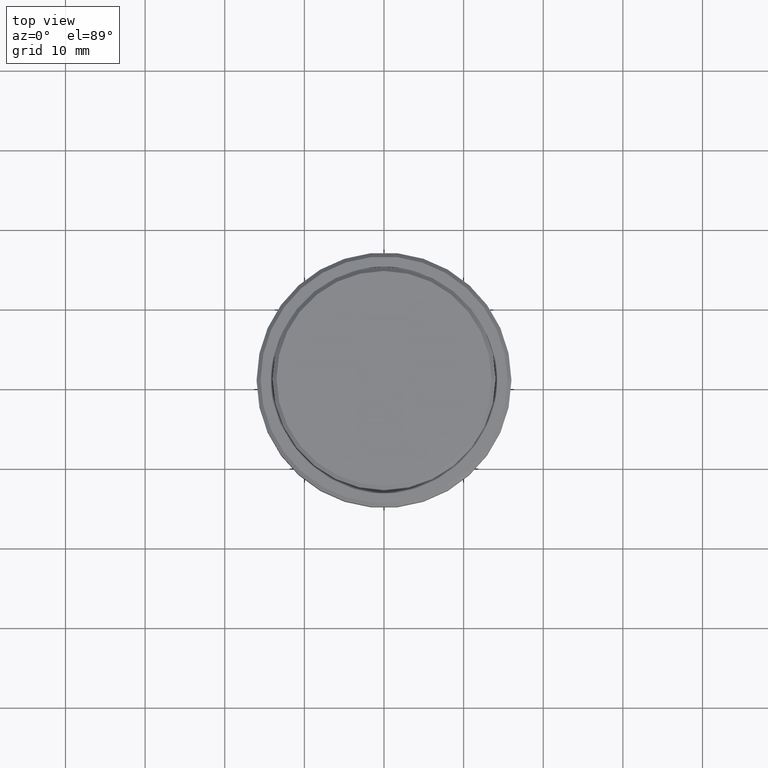
[diagram: clean part render]
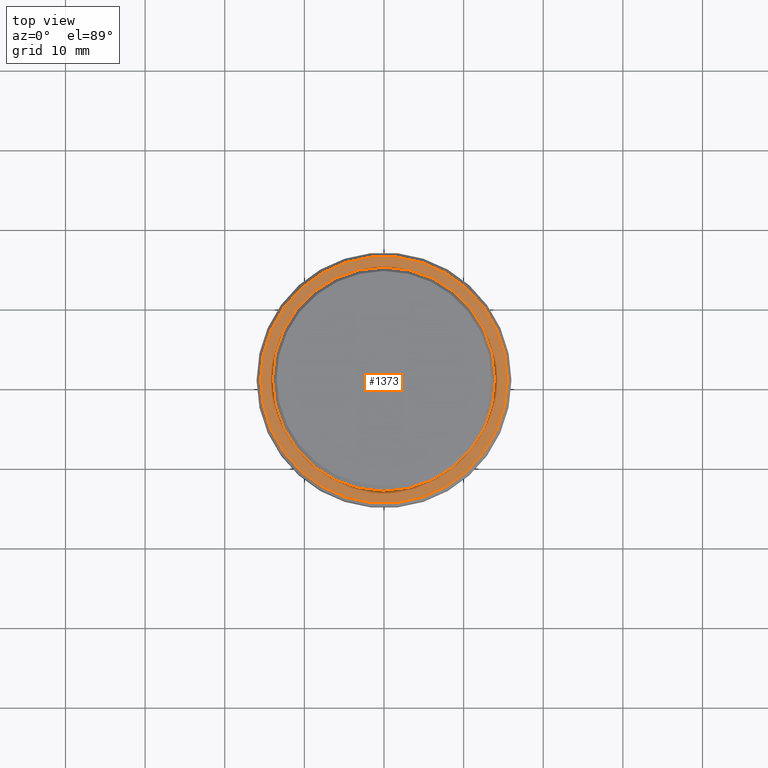
[diagram: same view with one face highlighted and labeled with its STEP entity id]
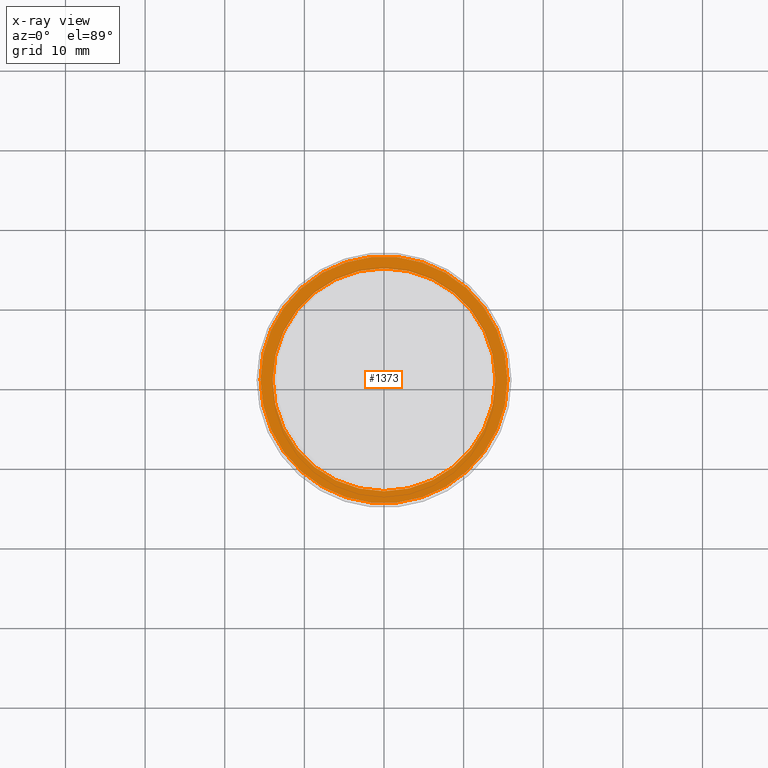
[diagram: x-ray of the same camera — body ghosted, the highlighted face saturated]
A machine part, top view. The second image highlights one B-rep face of the part: STEP entity #1373.
The next image is the same camera in x-ray: the body ghosted, the highlighted face saturated — about 0% of this face is hidden behind the body in this view.
In plain terms, the highlighted planar face has unit normal (0, -0, 1).
Its self-contained STEP definition (entity closure, byte-faithful):
#14 = CIRCLE ( 'NONE', #1383, 15.50000000000002842 ) ;
#66 = DIRECTION ( 'NONE',  ( 0.000000000000000000, 0.000000000000000000, -1.000000000000000000 ) ) ;
#71 = CARTESIAN_POINT ( 'NONE',  ( 0.000000000000000000, 13.49999999999999112, -10.00000000000000178 ) ) ;
#149 = EDGE_LOOP ( 'NONE', ( #963, #267 ) ) ;
#155 = EDGE_CURVE ( 'NONE', #224, #1202, #14, .T. ) ;
#162 = AXIS2_PLACEMENT_3D ( 'NONE', #71, #953, #420 ) ;
#208 = FACE_OUTER_BOUND ( 'NONE', #264, .T. ) ;
#224 = VERTEX_POINT ( 'NONE', #399 ) ;
#264 = EDGE_LOOP ( 'NONE', ( #421, #1207 ) ) ;
#267 = ORIENTED_EDGE ( 'NONE', *, *, #443, .T. ) ;
#295 = DIRECTION ( 'NONE',  ( 1.000000000000000000, 0.000000000000000000, 0.000000000000000000 ) ) ;
#315 = FACE_BOUND ( 'NONE', #149, .T. ) ;
#399 = CARTESIAN_POINT ( 'NONE',  ( 15.50000000000002842, 1.928818708657082922E-15, -10.00000000000000178 ) ) ;
#420 = DIRECTION ( 'NONE',  ( 1.000000000000000000, 0.000000000000000000, 0.000000000000000000 ) ) ;
#421 = ORIENTED_EDGE ( 'NONE', *, *, #564, .T. ) ;
#424 = DIRECTION ( 'NONE',  ( 1.000000000000000000, 0.000000000000000000, 0.000000000000000000 ) ) ;
#443 = EDGE_CURVE ( 'NONE', #1240, #782, #887, .T. ) ;
#492 = EDGE_CURVE ( 'NONE', #782, #1240, #1402, .T. ) ;
#495 = CARTESIAN_POINT ( 'NONE',  ( 0.000000000000000000, 0.000000000000000000, -10.00000000000000178 ) ) ;
#564 = EDGE_CURVE ( 'NONE', #1202, #224, #1352, .T. ) ;
#590 = DIRECTION ( 'NONE',  ( 1.000000000000000000, 0.000000000000000000, 0.000000000000000000 ) ) ;
#594 = DIRECTION ( 'NONE',  ( 1.000000000000000000, 0.000000000000000000, 0.000000000000000000 ) ) ;
#614 = CARTESIAN_POINT ( 'NONE',  ( 0.000000000000000000, 0.000000000000000000, -10.00000000000000178 ) ) ;
#678 = CARTESIAN_POINT ( 'NONE',  ( 13.99999999999999112, 0.000000000000000000, -10.00000000000000178 ) ) ;
#747 = AXIS2_PLACEMENT_3D ( 'NONE', #614, #941, #295 ) ;
#782 = VERTEX_POINT ( 'NONE', #678 ) ;
#887 = CIRCLE ( 'NONE', #1093, 13.99999999999999112 ) ;
#923 = CARTESIAN_POINT ( 'NONE',  ( 0.000000000000000000, 0.000000000000000000, -10.00000000000000178 ) ) ;
#935 = CARTESIAN_POINT ( 'NONE',  ( 0.000000000000000000, 0.000000000000000000, -10.00000000000000178 ) ) ;
#941 = DIRECTION ( 'NONE',  ( -0.000000000000000000, -0.000000000000000000, 1.000000000000000000 ) ) ;
#953 = DIRECTION ( 'NONE',  ( 0.000000000000000000, -0.000000000000000000, 1.000000000000000000 ) ) ;
#963 = ORIENTED_EDGE ( 'NONE', *, *, #492, .T. ) ;
#1054 = PLANE ( 'NONE',  #162 ) ;
#1093 = AXIS2_PLACEMENT_3D ( 'NONE', #495, #1220, #590 ) ;
#1136 = DIRECTION ( 'NONE',  ( -0.000000000000000000, -0.000000000000000000, 1.000000000000000000 ) ) ;
#1202 = VERTEX_POINT ( 'NONE', #1217 ) ;
#1207 = ORIENTED_EDGE ( 'NONE', *, *, #155, .T. ) ;
#1217 = CARTESIAN_POINT ( 'NONE',  ( -15.50000000000002842, 0.000000000000000000, -10.00000000000000178 ) ) ;
#1220 = DIRECTION ( 'NONE',  ( 0.000000000000000000, 0.000000000000000000, -1.000000000000000000 ) ) ;
#1240 = VERTEX_POINT ( 'NONE', #1305 ) ;
#1270 = AXIS2_PLACEMENT_3D ( 'NONE', #935, #66, #424 ) ;
#1305 = CARTESIAN_POINT ( 'NONE',  ( -13.99999999999999112, 1.714505518806293455E-15, -10.00000000000000178 ) ) ;
#1352 = CIRCLE ( 'NONE', #747, 15.50000000000002842 ) ;
#1373 = ADVANCED_FACE ( 'NONE', ( #208, #315 ), #1054, .T. ) ;
#1383 = AXIS2_PLACEMENT_3D ( 'NONE', #923, #1136, #594 ) ;
#1402 = CIRCLE ( 'NONE', #1270, 13.99999999999999112 ) ;